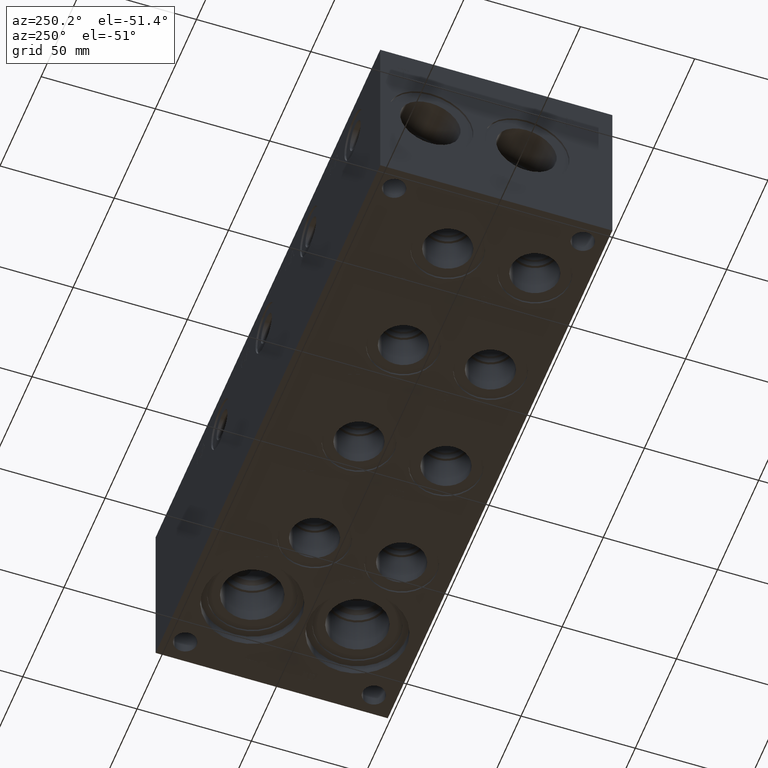
[diagram: clean part render]
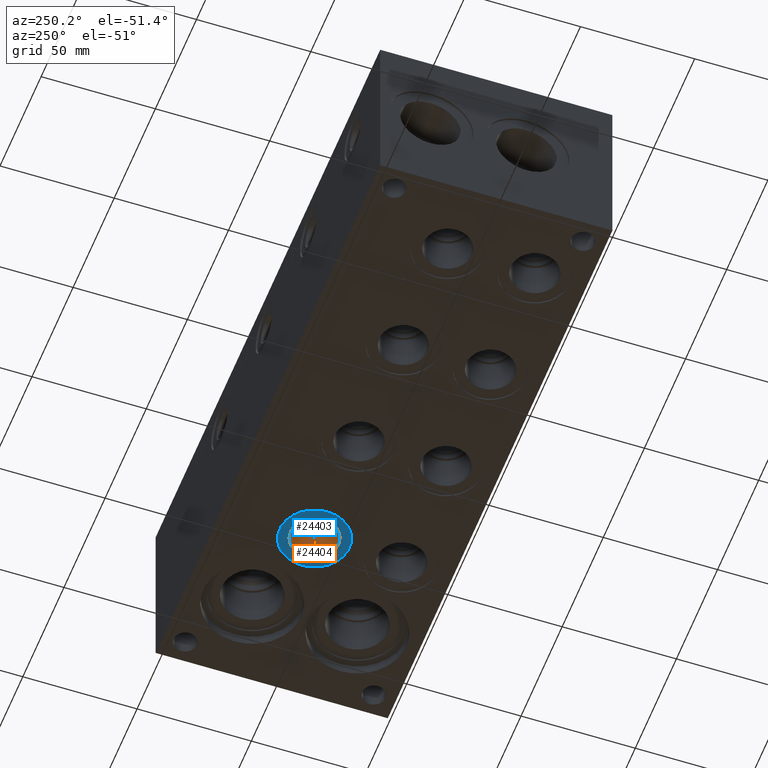
[diagram: same view with the hole feature highlighted: cylindrical wall and planar end face, labeled with their STEP entity ids]
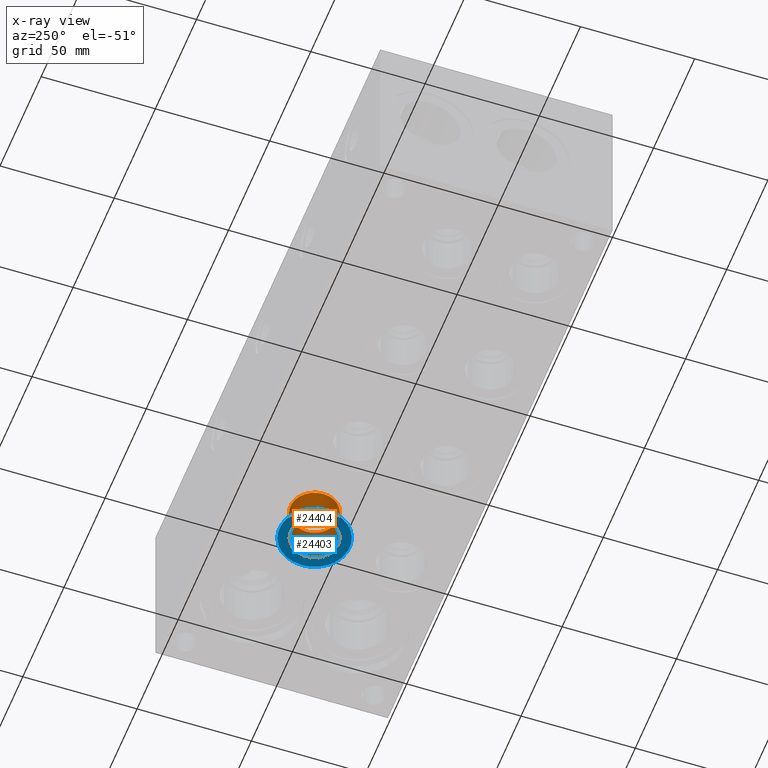
[diagram: x-ray of the same camera — body ghosted, the hole faces saturated]
A machine part, auxiliary view. The highlighted faces form one hole feature of diameter 21.0566 mm: the cylindrical wall (entity #24404, orange) and its adjacent planar end face (entity #24403, blue) — they share a circular edge in the B-rep.
The next image is the same camera in x-ray (body ghosted, the hole faces saturated) — the bore reads through the body.
Wall:
#26=CYLINDRICAL_SURFACE('',#25411,10.5283);
#350=CIRCLE('',#25409,10.5283);
#351=CIRCLE('',#25410,10.5283);
#352=CIRCLE('',#25412,10.5283);
#353=CIRCLE('',#25413,10.5283);
#3176=FACE_OUTER_BOUND('',#4572,.T.);
#4572=EDGE_LOOP('',(#20352,#20353,#20354,#20355,#20356,#20357));
#6833=LINE('',#41812,#8929);
#8929=VECTOR('',#29463,10.5283);
#10998=VERTEX_POINT('',#41806);
#10999=VERTEX_POINT('',#41807);
#11000=VERTEX_POINT('',#41811);
#11001=VERTEX_POINT('',#41813);
#14274=EDGE_CURVE('',#10998,#10999,#350,.T.);
#14275=EDGE_CURVE('',#10999,#10998,#351,.T.);
#14276=EDGE_CURVE('',#10999,#11000,#6833,.T.);
#14277=EDGE_CURVE('',#11000,#11001,#352,.T.);
#14278=EDGE_CURVE('',#11001,#11000,#353,.T.);
#20352=ORIENTED_EDGE('',*,*,#14274,.F.);
#20353=ORIENTED_EDGE('',*,*,#14275,.F.);
#20354=ORIENTED_EDGE('',*,*,#14276,.T.);
#20355=ORIENTED_EDGE('',*,*,#14277,.T.);
#20356=ORIENTED_EDGE('',*,*,#14278,.T.);
#20357=ORIENTED_EDGE('',*,*,#14276,.F.);
#24404=ADVANCED_FACE('',(#3176),#26,.F.);
#25409=AXIS2_PLACEMENT_3D('',#41808,#29457,#29458);
#25410=AXIS2_PLACEMENT_3D('',#41809,#29459,#29460);
#25411=AXIS2_PLACEMENT_3D('',#41810,#29461,#29462);
#25412=AXIS2_PLACEMENT_3D('',#41814,#29464,#29465);
#25413=AXIS2_PLACEMENT_3D('',#41815,#29466,#29467);
#29457=DIRECTION('center_axis',(0.,0.,1.));
#29458=DIRECTION('ref_axis',(1.,0.,0.));
#29459=DIRECTION('center_axis',(0.,0.,1.));
#29460=DIRECTION('ref_axis',(1.,0.,0.));
#29461=DIRECTION('center_axis',(0.,0.,1.));
#29462=DIRECTION('ref_axis',(1.,0.,0.));
#29463=DIRECTION('',(0.,0.,1.));
#29464=DIRECTION('center_axis',(0.,0.,1.));
#29465=DIRECTION('ref_axis',(1.,0.,0.));
#29466=DIRECTION('center_axis',(0.,0.,1.));
#29467=DIRECTION('ref_axis',(1.,0.,0.));
#41806=CARTESIAN_POINT('',(204.9907,60.325,0.7874));
#41807=CARTESIAN_POINT('',(183.9341,60.325,0.787400000000001));
#41808=CARTESIAN_POINT('Origin',(194.4624,60.325,0.7874));
#41809=CARTESIAN_POINT('Origin',(194.4624,60.325,0.7874));
#41810=CARTESIAN_POINT('Origin',(194.4624,60.325,9.0805));
#41811=CARTESIAN_POINT('',(183.9341,60.325,17.3736));
#41812=CARTESIAN_POINT('',(183.9341,60.325,9.0805));
#41813=CARTESIAN_POINT('',(204.9907,60.325,17.3736));
#41814=CARTESIAN_POINT('Origin',(194.4624,60.325,17.3736));
#41815=CARTESIAN_POINT('Origin',(194.4624,60.325,17.3736));
End face:
#348=CIRCLE('',#25406,15.3416);
#349=CIRCLE('',#25407,15.3416);
#350=CIRCLE('',#25409,10.5283);
#351=CIRCLE('',#25410,10.5283);
#952=FACE_BOUND('',#4571,.T.);
#3175=FACE_OUTER_BOUND('',#4570,.T.);
#4570=EDGE_LOOP('',(#20348,#20349));
#4571=EDGE_LOOP('',(#20350,#20351));
#10996=VERTEX_POINT('',#41800);
#10997=VERTEX_POINT('',#41802);
#10998=VERTEX_POINT('',#41806);
#10999=VERTEX_POINT('',#41807);
#14272=EDGE_CURVE('',#10996,#10997,#348,.T.);
#14273=EDGE_CURVE('',#10997,#10996,#349,.T.);
#14274=EDGE_CURVE('',#10998,#10999,#350,.T.);
#14275=EDGE_CURVE('',#10999,#10998,#351,.T.);
#20348=ORIENTED_EDGE('',*,*,#14273,.F.);
#20349=ORIENTED_EDGE('',*,*,#14272,.F.);
#20350=ORIENTED_EDGE('',*,*,#14274,.T.);
#20351=ORIENTED_EDGE('',*,*,#14275,.T.);
#22436=PLANE('',#25408);
#24403=ADVANCED_FACE('',(#3175,#952),#22436,.F.);
#25406=AXIS2_PLACEMENT_3D('',#41803,#29451,#29452);
#25407=AXIS2_PLACEMENT_3D('',#41804,#29453,#29454);
#25408=AXIS2_PLACEMENT_3D('',#41805,#29455,#29456);
#25409=AXIS2_PLACEMENT_3D('',#41808,#29457,#29458);
#25410=AXIS2_PLACEMENT_3D('',#41809,#29459,#29460);
#29451=DIRECTION('center_axis',(0.,0.,1.));
#29452=DIRECTION('ref_axis',(1.,0.,0.));
#29453=DIRECTION('center_axis',(0.,0.,1.));
#29454=DIRECTION('ref_axis',(1.,0.,0.));
#29455=DIRECTION('center_axis',(0.,0.,1.));
#29456=DIRECTION('ref_axis',(1.,0.,0.));
#29457=DIRECTION('center_axis',(0.,0.,1.));
#29458=DIRECTION('ref_axis',(1.,0.,0.));
#29459=DIRECTION('center_axis',(0.,0.,1.));
#29460=DIRECTION('ref_axis',(1.,0.,0.));
#41800=CARTESIAN_POINT('',(179.1208,60.325,0.7874));
#41802=CARTESIAN_POINT('',(209.804,60.325,0.7874));
#41803=CARTESIAN_POINT('Origin',(194.4624,60.325,0.7874));
#41804=CARTESIAN_POINT('Origin',(194.4624,60.325,0.7874));
#41805=CARTESIAN_POINT('Origin',(204.9907,60.325,0.7874));
#41806=CARTESIAN_POINT('',(204.9907,60.325,0.7874));
#41807=CARTESIAN_POINT('',(183.9341,60.325,0.787400000000001));
#41808=CARTESIAN_POINT('Origin',(194.4624,60.325,0.7874));
#41809=CARTESIAN_POINT('Origin',(194.4624,60.325,0.7874));